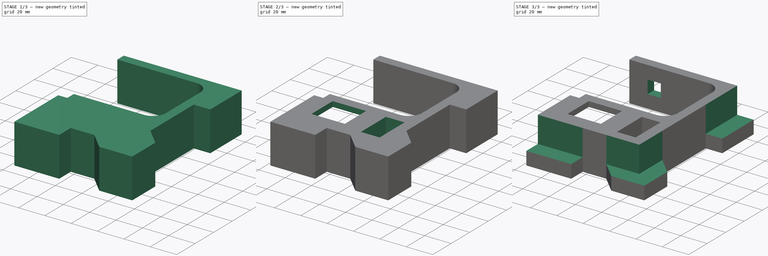
[diagram: build sequence overview — one tinted view per stage of 3, left to right]
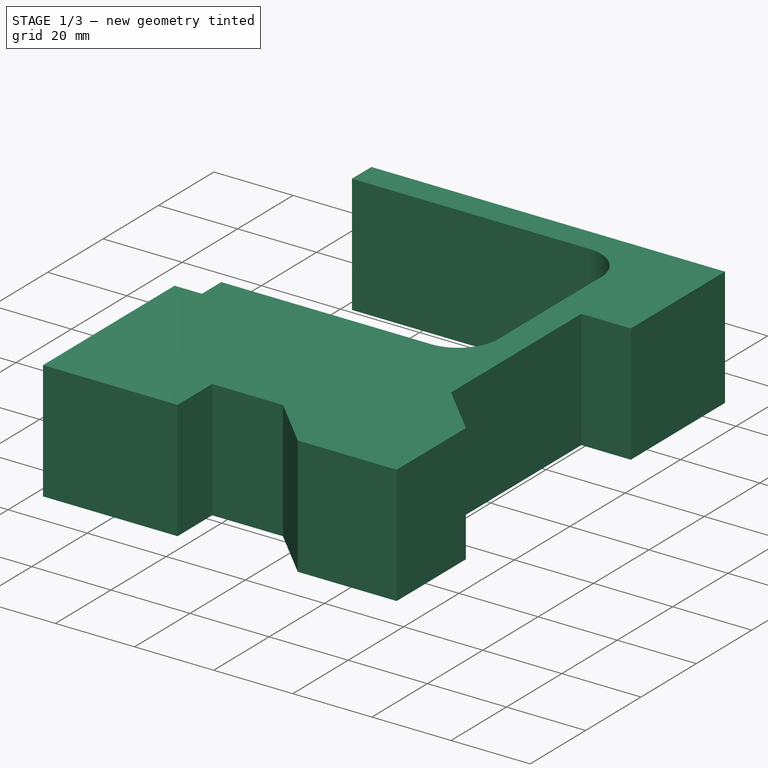
[diagram: stage 1 of 3 — iso view after this stage's code; geometry added in this stage tinted green]
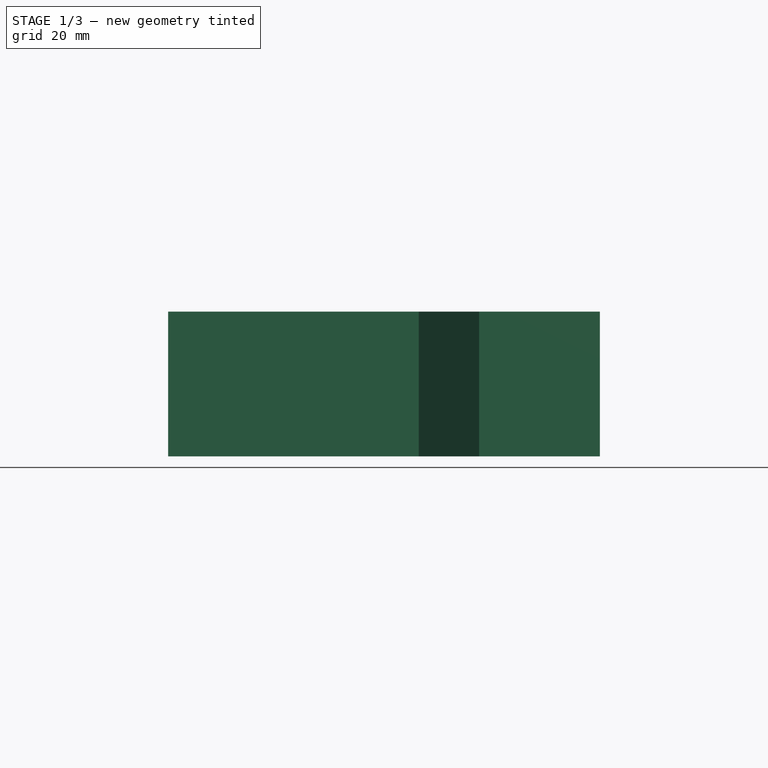
[diagram: stage 1 of 3 — front view after this stage's code; geometry added in this stage tinted green]
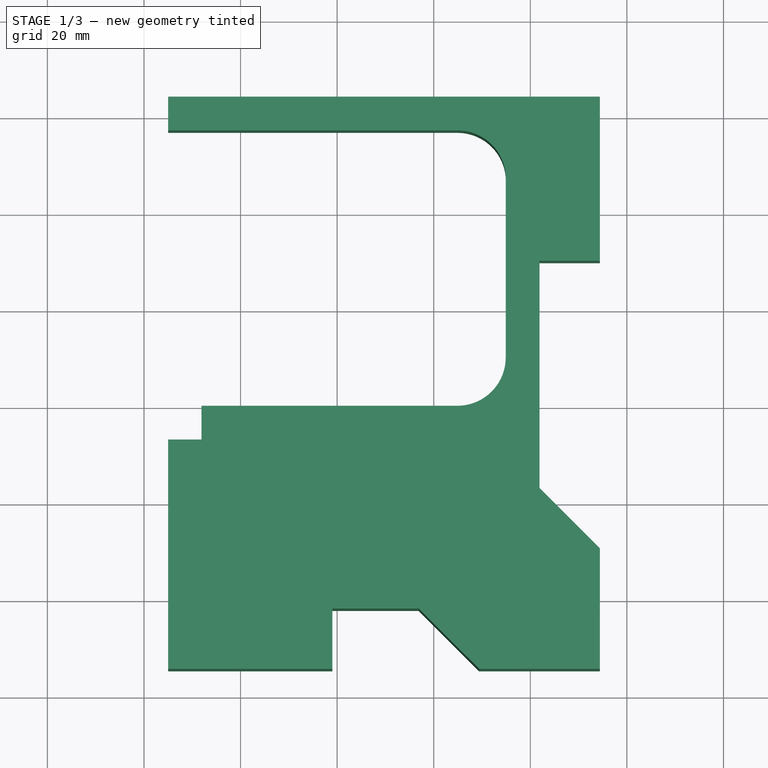
[diagram: stage 1 of 3 — top view after this stage's code; geometry added in this stage tinted green]
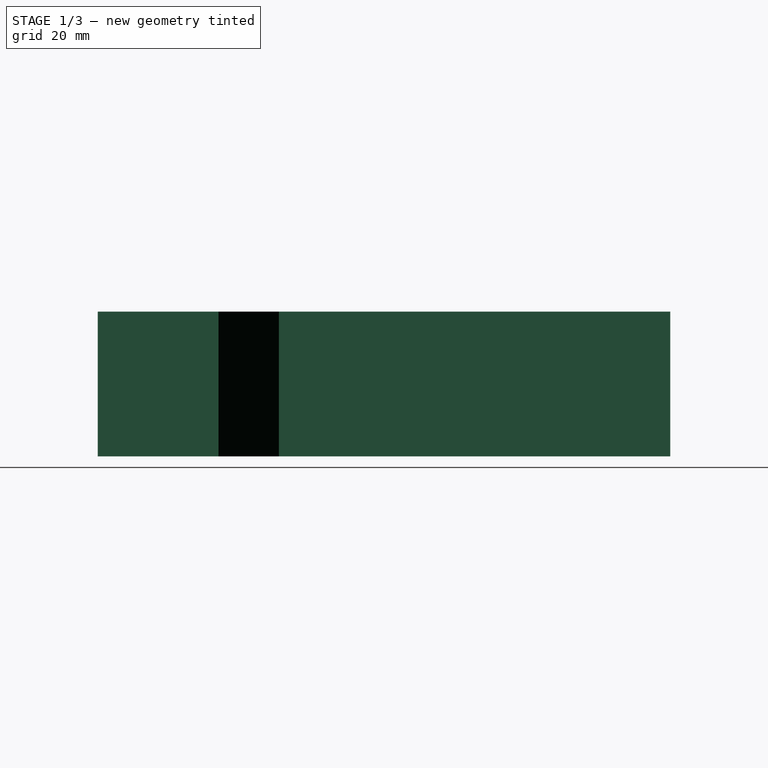
[diagram: stage 1 of 3 — right view after this stage's code; geometry added in this stage tinted green]
FCSTD DOCUMENT  (FreeCAD 0.20R29410 (Git))
Label: hip-female-v2
License: All rights reserved
LicenseURL: http://en.wikipedia.org/wiki/All_rights_reserved
objects: Sketcher::SketchObject×6, PartDesign::Pocket×5, PartDesign::Pad×1, PartDesign::Body×1
note: 19 computed .brp shape members not serialized (recipe doc carries the construction recipe); baked Part::Feature solids carry a one-line shape summary decoded from their .brp

FEATURE [Sketcher::SketchObject] Sketch001
  AttachmentOffset = pos=(0,0,4) rot=(0,0,1;0rad)
  FullyConstrained = true
  MapMode = 5
  Placement = pos=(0,0,4) rot=(0,0,1;0rad)
  Support = -> [XY_Plane]
  sketch-geometry (8):
    g0: LineSegment StartX=-28.1 StartY=-20 StartZ=0 EndX=-28.1 EndY=-58.5 EndZ=0
    g1: LineSegment StartX=-28.1 StartY=-58.5 StartZ=0 EndX=12.2 EndY=-58.5 EndZ=0
    g2: LineSegment StartX=12.2 StartY=-58.5 StartZ=0 EndX=12.2 EndY=-20 EndZ=0
    g3: LineSegment StartX=12.2 StartY=-20 StartZ=0 EndX=-18.1 EndY=-20 EndZ=0
    g4: LineSegment StartX=-18.1 StartY=-20 StartZ=0 EndX=-18.1 EndY=-13.5 EndZ=0
    g5: LineSegment StartX=-18.1 StartY=-13.5 StartZ=0 EndX=-24.1 EndY=-13.5 EndZ=0
    g6: LineSegment StartX=-24.1 StartY=-13.5 StartZ=0 EndX=-24.1 EndY=-20 EndZ=0
    g7: LineSegment StartX=-28.1 StartY=-20 StartZ=0 EndX=-24.1 EndY=-20 EndZ=0
  constraints (24):
    c: Vertical(g0)
    c: Coincident(g1,g0)
    c: Horizontal(g1)
    c: Coincident(g1,g2)
    c: Vertical(g2)
    c: Coincident(g2,g3)
    c: Horizontal(g3)
    c: Coincident(g3,g4)
    c: Vertical(g4)
    c: Coincident(g4,g5)
    c: Horizontal(g5)
    c: Coincident(g5,g6)
    c: Vertical(g6)
    c: Coincident(g7,g0)
    c: Coincident(g7,g6)
    c: Horizontal(g7)
    c: DistanceY(g0,g0) = 38.5
    c: DistanceY(g6,g6) = 6.5
    c: DistanceY(g2,g2) = 38.5
    c: DistanceX(g1,g1) = 40.3
    c: DistanceX(g7,g7) = 4
    c: DistanceX(g5,g5) = 6
    c: DistanceY(g2,g-1) = 20
    c: DistanceX(g0,g-1) = 28.1
FEATURE [Sketcher::SketchObject] Sketch002
  AttachmentOffset = pos=(0,0,-35) rot=(0,0,1;0rad)
  FullyConstrained = false
  MapMode = 5
  Placement = pos=(-35,7.8e-15,-7.8e-15) rot=(0.57735,0.57735,0.57735;2.0944rad)
  Support = -> [YZ_Plane]
  sketch-geometry (6):
    g0: LineSegment StartX=-27 StartY=26.1858 StartZ=0 EndX=-27 EndY=14.1858 EndZ=0
    g1: LineSegment StartX=-27 StartY=14.1858 StartZ=0 EndX=-37 EndY=14.1858 EndZ=0
    g2: LineSegment StartX=-37 StartY=14.1858 StartZ=0 EndX=-47 EndY=4 EndZ=0
    g3: LineSegment StartX=-47 StartY=4 StartZ=0 EndX=-57 EndY=4 EndZ=0
    g4: LineSegment StartX=-57 StartY=4 StartZ=0 EndX=-57 EndY=26.1858 EndZ=0
    g5: LineSegment StartX=-57 StartY=26.1858 StartZ=0 EndX=-27 EndY=26.1858 EndZ=0
  constraints (17):
    c: Vertical(g0)
    c: Coincident(g0,g1)
    c: Horizontal(g1)
    c: Coincident(g1,g2)
    c: Coincident(g2,g3)
    c: Horizontal(g3)
    c: Coincident(g3,g4)
    c: Vertical(g4)
    c: Coincident(g4,g5)
    c: Coincident(g5,g0)
    c: Horizontal(g5)
    c: DistanceX(g0,g-1) = 27
    c: DistanceY(g-1,g2) = 4
    c: DistanceY(g0,g0) = 12
    c: DistanceX(g5,g5) = 30
    c: DistanceX(g3,g3) = 10
    c: DistanceX(g1,g1) = 10
FEATURE [Sketcher::SketchObject] Sketch003
  FullyConstrained = true
  MapMode = 5
  Support = -> [XY_Plane]
  sketch-geometry (8):
    g0: LineSegment StartX=-20.6 StartY=-50.5 StartZ=0 EndX=4.7 EndY=-50.5 EndZ=0
    g1: LineSegment StartX=4.7 StartY=-50.5 StartZ=0 EndX=4.7 EndY=-27.5 EndZ=0
    g2: LineSegment StartX=4.7 StartY=-27.5 StartZ=0 EndX=-20.6 EndY=-27.5 EndZ=0
    g3: LineSegment StartX=-20.6 StartY=-27.5 StartZ=0 EndX=-20.6 EndY=-50.5 EndZ=0
    g4: LineSegment StartX=19.7 StartY=-27.5 StartZ=0 EndX=33.9 EndY=-27.5 EndZ=0
    g5: LineSegment StartX=33.9 StartY=-27.5 StartZ=0 EndX=33.9 EndY=-54.5 EndZ=0
    g6: LineSegment StartX=33.9 StartY=-54.5 StartZ=0 EndX=19.7 EndY=-54.5 EndZ=0
    g7: LineSegment StartX=19.7 StartY=-54.5 StartZ=0 EndX=19.7 EndY=-27.5 EndZ=0
  constraints (24):
    c: Horizontal(g0)
    c: Coincident(g0,g1)
    c: Vertical(g1)
    c: Coincident(g1,g2)
    c: Horizontal(g2)
    c: Coincident(g3,g2)
    c: Coincident(g3,g0)
    c: Vertical(g3)
    c: DistanceY(g1,g-1) = 27.5
    c: DistanceX(g2,g-1) = 20.6
    c: DistanceX(g-1,g1) = 4.7
    c: Distance(g3) = 23
    c: Coincident(g4,g5)
    c: Coincident(g5,g6)
    c: Coincident(g6,g7)
    c: Coincident(g7,g4)
    c: Horizontal(g4)
    c: Horizontal(g6)
    c: Vertical(g5)
    c: Vertical(g7)
    c: DistanceY(g4,g-1) = 27.5
    c: DistanceX(g1,g4) = 15
    c: DistanceX(g4,g4) = 14.2
    c: DistanceY(g7,g7) = 27
FEATURE [Sketcher::SketchObject] Sketch
  ExternalGeometry = -> [Sketch003]
  FullyConstrained = false
  MapMode = 5
  Support = -> [XY_Plane]
  sketch-geometry (23):
    g0: LineSegment StartX=-35 StartY=44.0273 StartZ=0 EndX=-35 EndY=37.0273 EndZ=0
    g1: LineSegment StartX=-35 StartY=-27 StartZ=0 EndX=-35 EndY=-62 EndZ=0
    g2: LineSegment StartX=41.9 StartY=44.0273 StartZ=0 EndX=-35 EndY=44.0273 EndZ=0
    g3: GeomPoint X=-5.85326 Y=11.8127 Z=0
    g4: LineSegment StartX=-35 StartY=-27 StartZ=0 EndX=-28.1 EndY=-27 EndZ=0
    g5: LineSegment StartX=-28.1 StartY=-27 StartZ=0 EndX=-28.1 EndY=-20 EndZ=0
    g6: ArcOfCircle CenterX=24.9318 CenterY=27.0274 CenterZ=0 NormalX=0 NormalY=0 NormalZ=1 AngleXU=0 Radius=10 StartAngle=6.2034 EndAngle=7.85716
    g7: LineSegment StartX=-35 StartY=37.0273 StartZ=0 EndX=24.9 EndY=37.0273 EndZ=0
    g8: ArcOfCircle CenterX=24.9027 CenterY=-10 CenterZ=0 NormalX=0 NormalY=0 NormalZ=1 AngleXU=0 Radius=10 StartAngle=4.71212 EndAngle=6.30622
    g9: LineSegment StartX=34.9 StartY=-9.76967 StartZ=0 EndX=34.9 EndY=26.2303 EndZ=0
    g10: LineSegment StartX=24.9 StartY=-20 StartZ=0 EndX=-28.1 EndY=-20 EndZ=0
    g11: LineSegment StartX=-35 StartY=-62 StartZ=0 EndX=-35 EndY=-74.5 EndZ=0
    g12: LineSegment StartX=-35 StartY=-74.5 StartZ=0 EndX=-1 EndY=-74.5 EndZ=0
    g13: LineSegment StartX=-1 StartY=-74.5 StartZ=0 EndX=-1 EndY=-62 EndZ=0
    g14: LineSegment StartX=16.9 StartY=-62 StartZ=0 EndX=29.4 EndY=-74.5 EndZ=0
    g15: LineSegment StartX=29.4 StartY=-74.5 StartZ=0 EndX=54.4 EndY=-74.5 EndZ=0
    g16: LineSegment StartX=54.4 StartY=-74.5 StartZ=0 EndX=54.4 EndY=-49.5 EndZ=0
    g17: LineSegment StartX=54.4 StartY=-49.5 StartZ=0 EndX=41.9 EndY=-37 EndZ=0
    g18: LineSegment StartX=-1 StartY=-62 StartZ=0 EndX=16.9 EndY=-62 EndZ=0
    g19: LineSegment StartX=41.9 StartY=44.0273 StartZ=0 EndX=54.4 EndY=44.0273 EndZ=0
    g20: LineSegment StartX=54.4 StartY=44.0273 StartZ=0 EndX=54.4 EndY=10.0273 EndZ=0
    g21: LineSegment StartX=54.4 StartY=10.0273 StartZ=0 EndX=41.9 EndY=10.0273 EndZ=0
    g22: LineSegment StartX=41.9 StartY=10.0273 StartZ=0 EndX=41.9 EndY=-37 EndZ=0
  constraints (65):
    c: Vertical(g0)
    c: Vertical(g1)
    c: Coincident(g2,g0)
    c: Horizontal(g2)
    c: DistanceY(g1,g1) = 35
    c: DistanceY(g0,g0) = 7
    c: Coincident(g4,g1)
    c: Horizontal(g4)
    c: Coincident(g5,g4)
    c: Vertical(g5)
    c: DistanceY(g5,g5) = 7
    c: DistanceX(g4,g4) = 6.9
    c: DistanceX(g1,g-1) = 35
    c: Radius(g6) = 10
    c: DistanceX(g6,g6) = 10
    c: Coincident(g7,g0)
    c: Coincident(g7,g6)
    c: Horizontal(g7)
    c: Radius(g8) = 10
    c: DistanceX(g8,g8) = 10
    c: Coincident(g9,g8)
    c: Coincident(g9,g6)
    c: Coincident(g10,g8)
    c: Coincident(g10,g5)
    c: Horizontal(g10)
    c: Vertical(g9)
    c: DistanceY(g9,g9) = 36
    c: DistanceX(g10,g10) = 53
    c: DistanceY(g8,g-1) = 20
    c: Coincident(g1,g11)
    c: Vertical(g11)
    c: Coincident(g11,g12)
    c: Horizontal(g12)
    c: Coincident(g12,g13)
    c: Vertical(g13)
    c: DistanceX(g12,g12) = 34
    c: DistanceY(g11,g11) = 12.5
    c: Equal(g11,g13)
    c: Coincident(g14,g15)
    c: Horizontal(g15)
    c: Coincident(g15,g16)
    c: Vertical(g16)
    c: Coincident(g16,g17)
    c: Coincident(g13,g18)
    c: Coincident(g18,g14)
    c: Horizontal(g18)
    c: DistanceX(g6,g2) = 7
    c: DistanceX(g15,g15) = 25
    c: Equal(g15,g16)
    c: Parallel(g14,g17)
    c: Equal(g17,g14)
    c: DistanceY(g14,g14) = 12.5
    c: DistanceX(g14,g14) = 12.5
    c: Coincident(g2,g19)
    c: Horizontal(g19)
    c: Coincident(g19,g20)
    c: Vertical(g20)
    c: Coincident(g20,g21)
    c: Horizontal(g21)
    c: Coincident(g21,g22)
    c: Coincident(g22,g17)
    c: Vertical(g22)
    c: Equal(g21,g19)
    c: DistanceX(g19,g19) = 12.5
    c: DistanceY(g20,g20) = 34
FEATURE [PartDesign::Pad] Pad  label="MainPad"
  Direction = (0,0,1)
  Length = 30
  Length2 = 10
  Profile = -> Sketch
  ReferenceAxis = -> Sketch [N_Axis]
  Type = 0
FEATURE [PartDesign::Pocket] Pocket  label="ServoPocket"
  BaseFeature = -> Pad
  Direction = (0,0,-1)
  Length = 22
  Length2 = 5
  Profile = -> Sketch001
  ReferenceAxis = -> Sketch001 [N_Axis]
  Reversed = true
  Type = 0
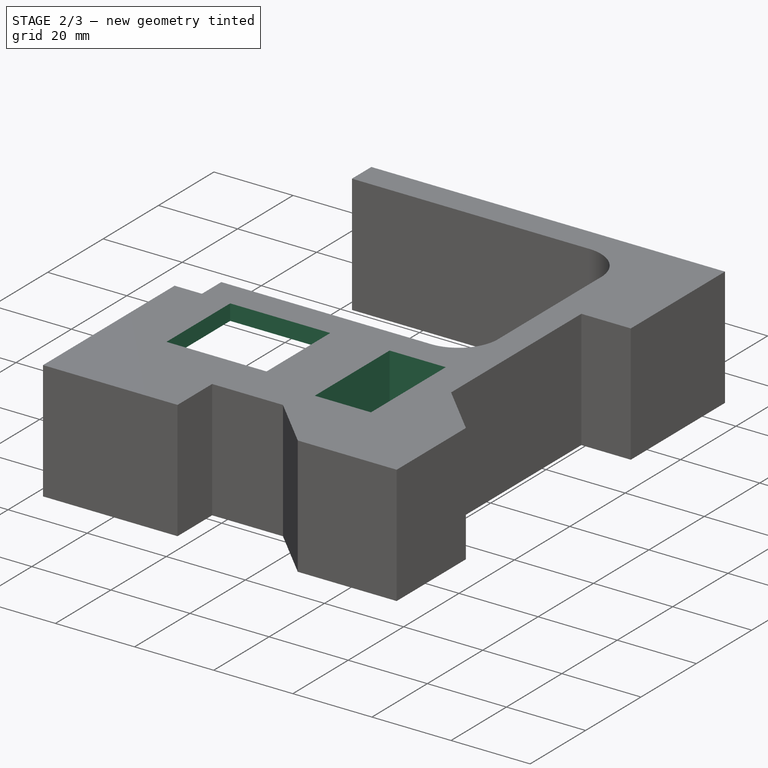
[diagram: stage 2 of 3 — iso view after this stage's code; geometry added in this stage tinted green]
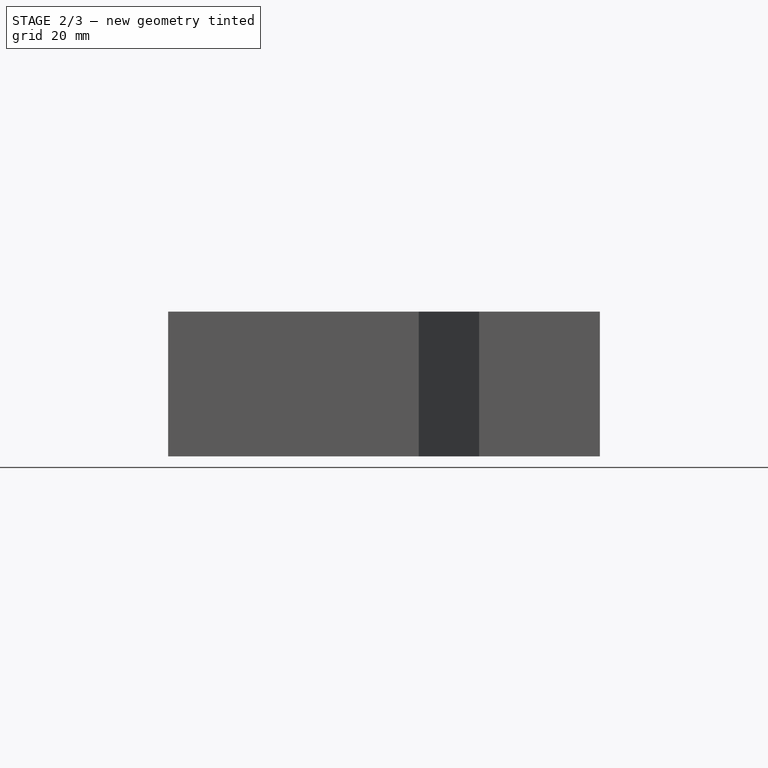
[diagram: stage 2 of 3 — front view after this stage's code; geometry added in this stage tinted green]
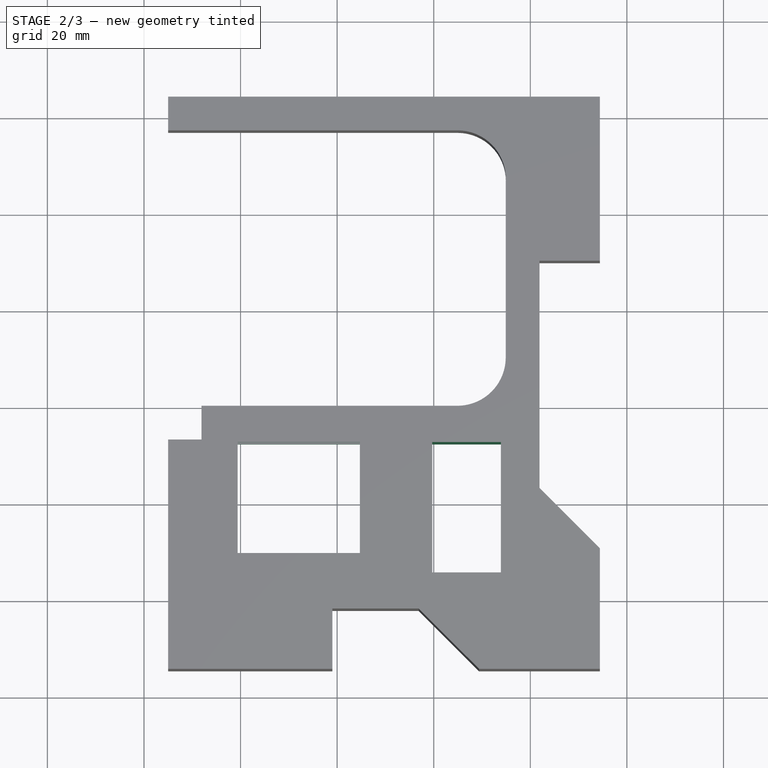
[diagram: stage 2 of 3 — top view after this stage's code; geometry added in this stage tinted green]
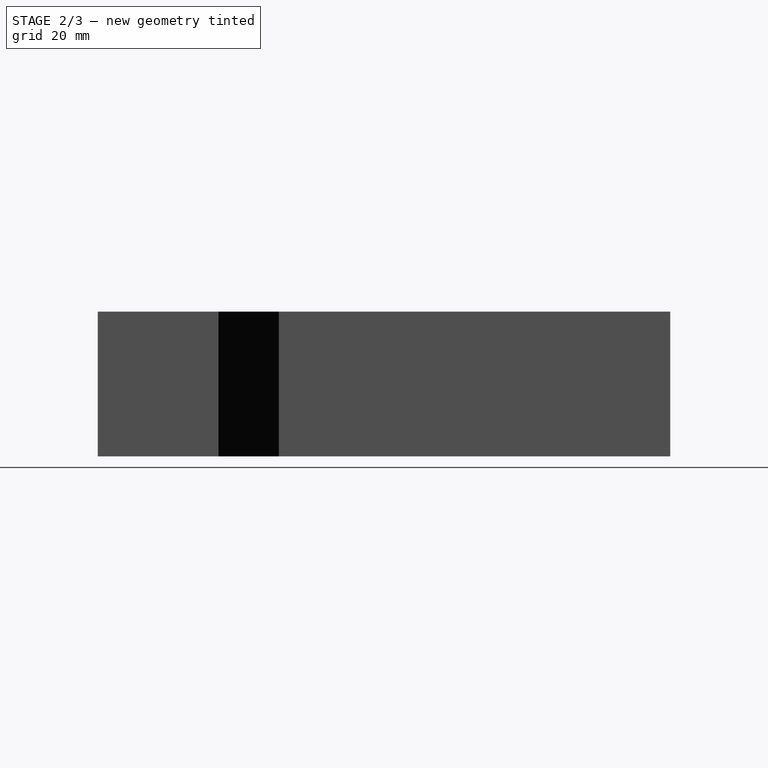
[diagram: stage 2 of 3 — right view after this stage's code; geometry added in this stage tinted green]
FEATURE [PartDesign::Pocket] Pocket001  label="SidePocket"
  BaseFeature = -> Pocket
  Direction = (-1,2e-16,-3e-16)
  Length = 6.9
  Length2 = 5
  Profile = -> Sketch002
  ReferenceAxis = -> Sketch002 [N_Axis]
  Reversed = true
  Type = 0
FEATURE [PartDesign::Pocket] Pocket002  label="OverServoPocket"
  BaseFeature = -> Pocket001
  Direction = (0,0,-1)
  Length = 30
  Length2 = 5
  Profile = -> Sketch003
  ReferenceAxis = -> Sketch003 [N_Axis]
  Reversed = true
  Type = 0
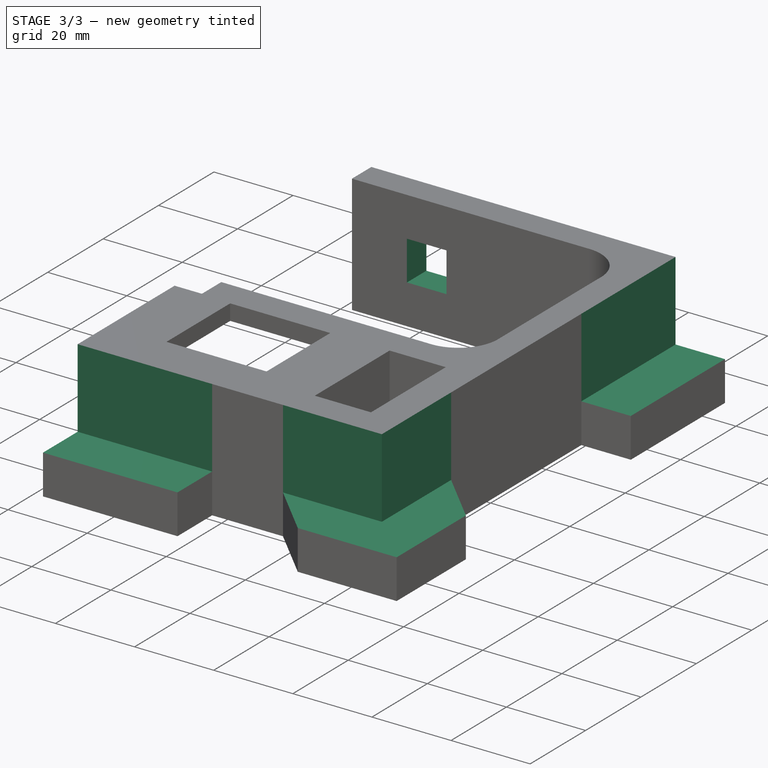
[diagram: stage 3 of 3 — iso view after this stage's code; geometry added in this stage tinted green]
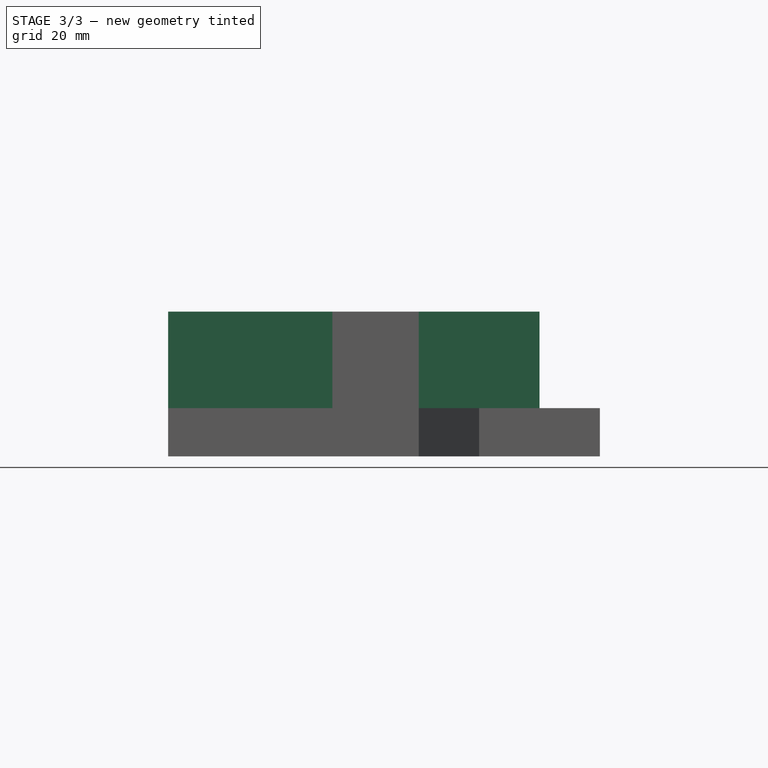
[diagram: stage 3 of 3 — front view after this stage's code; geometry added in this stage tinted green]
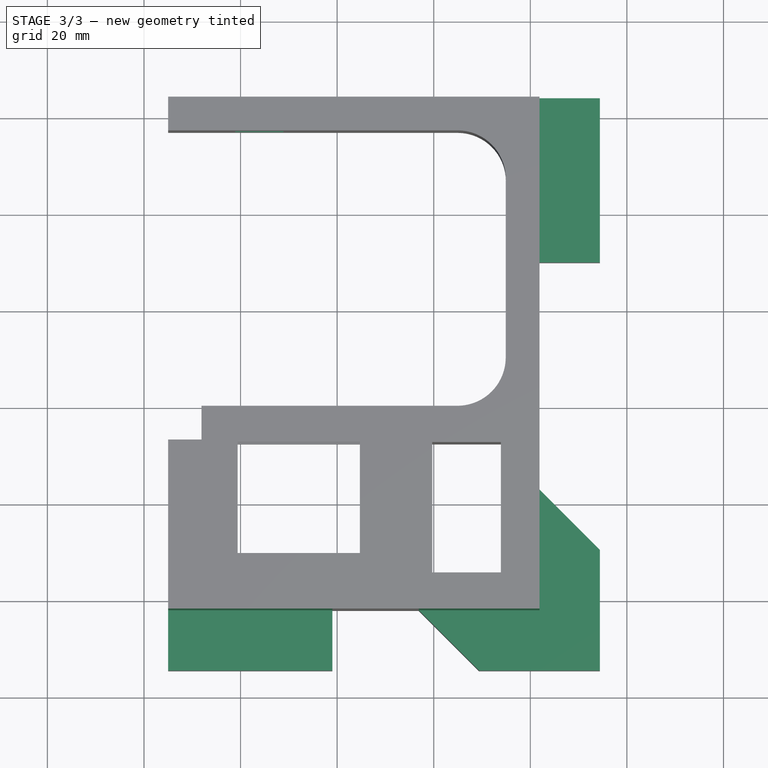
[diagram: stage 3 of 3 — top view after this stage's code; geometry added in this stage tinted green]
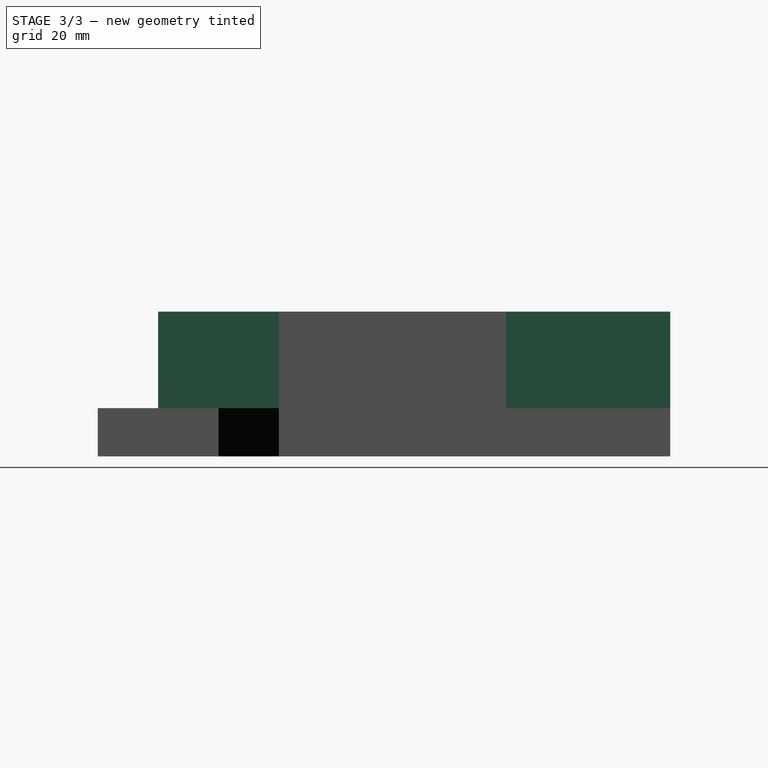
[diagram: stage 3 of 3 — right view after this stage's code; geometry added in this stage tinted green]
FEATURE [Sketcher::SketchObject] Sketch004
  FullyConstrained = true
  MapMode = 5
  Placement = pos=(0,0,0) rot=(1,0,0;1.5708rad)
  Support = -> [XZ_Plane]
  sketch-geometry (6):
    g0: GeomPoint X=-16.1 Y=15 Z=0
    g1: LineSegment StartX=-21.1 StartY=20 StartZ=0 EndX=-21.1 EndY=10 EndZ=0
    g2: LineSegment StartX=-21.1 StartY=10 StartZ=0 EndX=-11.1 EndY=10 EndZ=0
    g3: LineSegment StartX=-11.1 StartY=10 StartZ=0 EndX=-11.1 EndY=20 EndZ=0
    g4: LineSegment StartX=-11.1 StartY=20 StartZ=0 EndX=-21.1 EndY=20 EndZ=0
    g5: GeomPoint X=-16.1 Y=15 Z=0
  constraints (14):
    c: Coincident(g1,g2)
    c: Coincident(g2,g3)
    c: Coincident(g3,g4)
    c: Coincident(g4,g1)
    c: Horizontal(g2)
    c: Horizontal(g4)
    c: Vertical(g1)
    c: Vertical(g3)
    c: Symmetric(g2,g1,g5)
    c: Coincident(g5,g0)
    c: DistanceX(g2,g2) = 10
    c: DistanceY(g3,g3) = 10
    c: DistanceX(g0,g-1) = 16.1
    c: DistanceY(g-1,g0) = 15
FEATURE [PartDesign::Pocket] Pocket003  label="PinPocket"
  BaseFeature = -> Pocket002
  Direction = (0,1,2e-16)
  Length = 50
  Length2 = 5
  Profile = -> Sketch004
  ReferenceAxis = -> Sketch004 [N_Axis]
  Type = 0
FEATURE [Sketcher::SketchObject] Sketch005
  AttachmentOffset = pos=(0,0,10) rot=(0,0,1;0rad)
  FullyConstrained = false
  MapMode = 5
  Placement = pos=(0,0,10) rot=(0,0,1;0rad)
  Support = -> [XY_Plane]
  sketch-geometry (7):
    g0: LineSegment StartX=54.4 StartY=-61.4163 StartZ=0 EndX=54.4 EndY=-74.5 EndZ=0
    g1: LineSegment StartX=54.4 StartY=-74.5 StartZ=0 EndX=-35 EndY=-74.5 EndZ=0
    g2: LineSegment StartX=-35 StartY=-74.5 StartZ=0 EndX=-35 EndY=-62 EndZ=0
    g3: LineSegment StartX=-35 StartY=-62 StartZ=0 EndX=41.9 EndY=-62 EndZ=0
    g4: LineSegment StartX=41.9 StartY=-62 StartZ=0 EndX=41.9 EndY=44.9 EndZ=0
    g5: LineSegment StartX=54.4 StartY=44.9 StartZ=0 EndX=54.4 EndY=-61.4163 EndZ=0
    g6: LineSegment StartX=41.9 StartY=44.9 StartZ=0 EndX=54.4 EndY=44.9 EndZ=0
  constraints (20):
    c: Coincident(g0,g1)
    c: Coincident(g1,g2)
    c: Horizontal(g1)
    c: Vertical(g0)
    c: Vertical(g2)
    c: DistanceY(g2,g2) = 12.5
    c: DistanceX(g1,g-1) = 35
    c: DistanceY(g1,g-1) = 74.5
    c: Coincident(g2,g3)
    c: Horizontal(g3)
    c: Coincident(g3,g4)
    c: Vertical(g4)
    c: Coincident(g5,g0)
    c: Vertical(g5)
    c: DistanceX(g3,g3) = 76.9
    c: DistanceX(g3,g0) = 12.5
    c: Coincident(g4,g6)
    c: Coincident(g6,g5)
    c: Horizontal(g6)
    c: DistanceY(g4,g4) = 106.9
FEATURE [PartDesign::Pocket] Pocket004  label="ConnectorPocket"
  BaseFeature = -> Pocket003
  Direction = (0,0,-1)
  Length = 20
  Length2 = 5
  Profile = -> Sketch005
  ReferenceAxis = -> Sketch005 [N_Axis]
  Reversed = true
  Type = 0
FEATURE [PartDesign::Body] Body
  Group = -> [Sketch,Pad,Sketch001,Pocket,Sketch002,Pocket001,Sketch003,Pocket002,Sketch004,Pocket003,Sketch005,Pocket004]
  Origin = -> Origin
  Tip = -> Pocket004
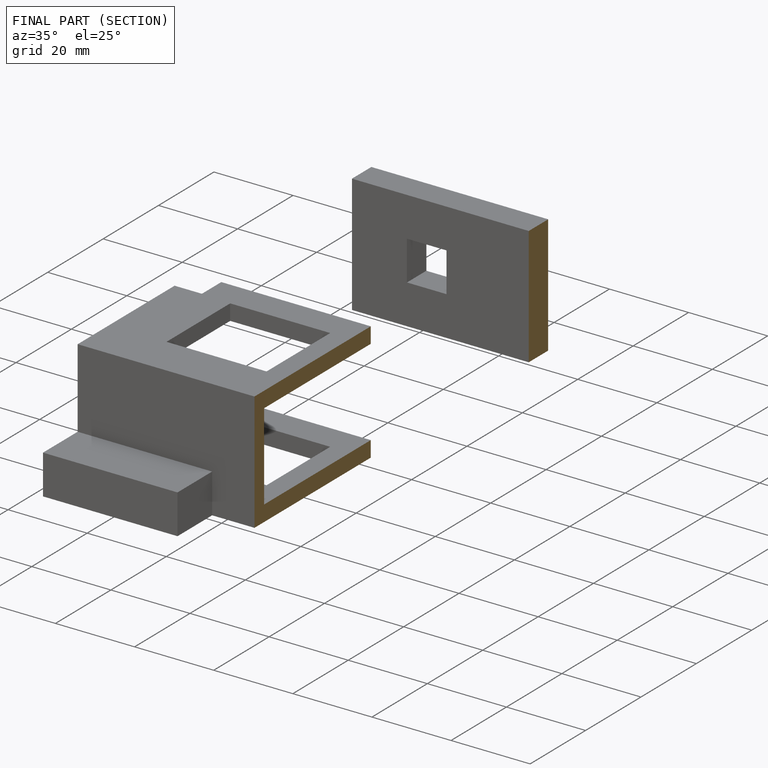
[diagram: finished part — half-section view (interior)]
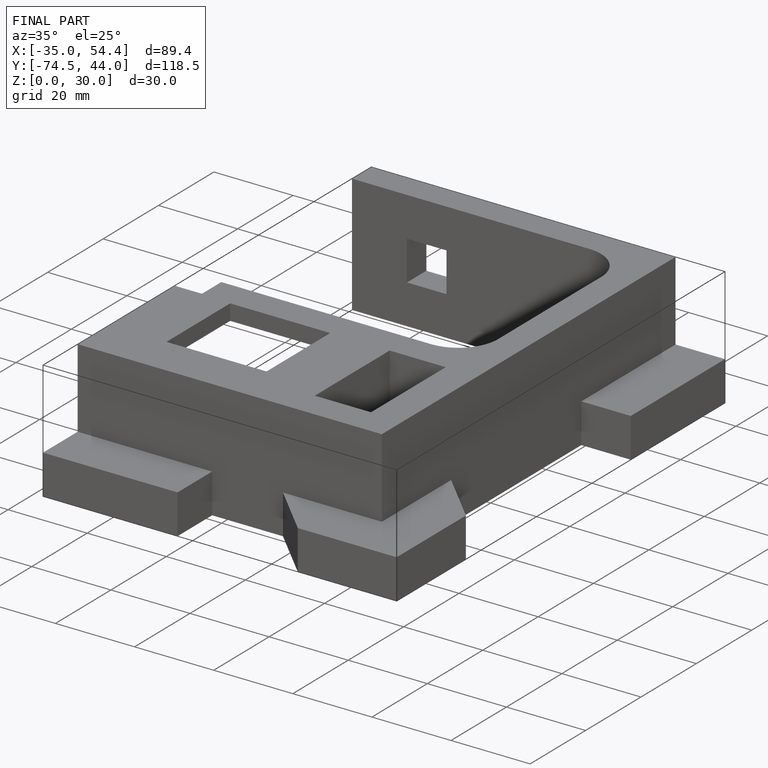
[diagram: finished part — iso view with bounding-box wireframe]
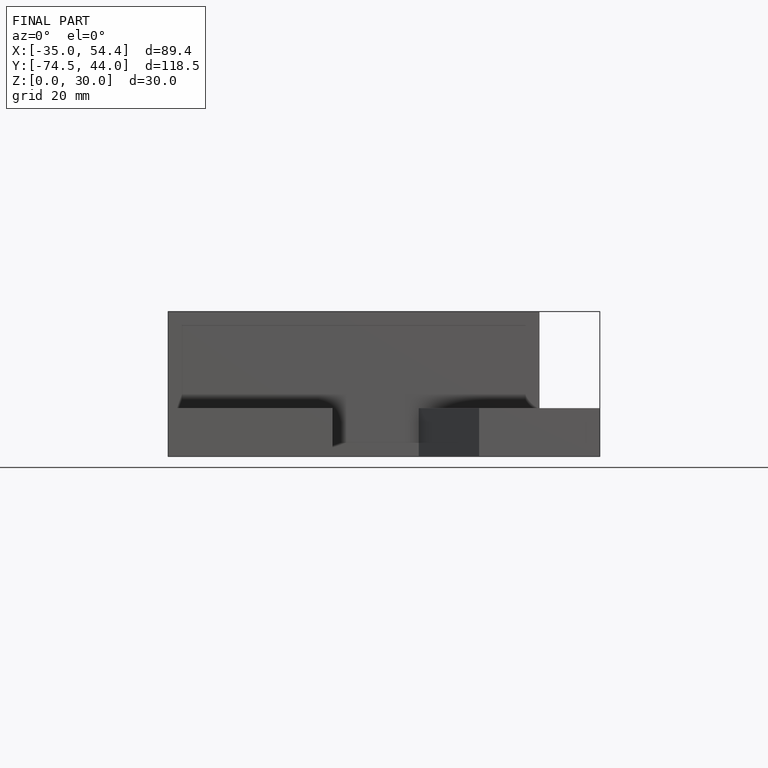
[diagram: finished part — front view with bounding-box wireframe]
